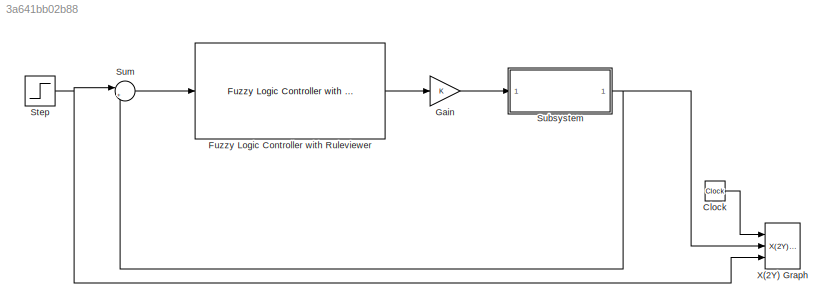
MODEL slx_3a641bb02b88
KIND model
BLOCK [Clock] Clock
  DisplayTime = on
BLOCK [Reference] Fuzzy Logic Controller with Ruleviewer  REF=fuzblock/Fuzzy Logic   (lib defined in mdl_858b3b3e7478)
Controller 
with Ruleviewer
  Ports = [1, 1]
  SourceBlock = fuzblock/Fuzzy Logic \nController \nwith Ruleviewer
  SourceType = FIS
  Ts = 2
  fismatrix = tank
BLOCK [Gain] Gain
  OutDataTypeStr = Inherit: Inherit via internal rule
  ParamDataTypeStr = Inherit: Inherit via internal rule
  SaturateOnIntegerOverflow = off
BLOCK [Step] Step
  After = 15
  SampleTime = 0
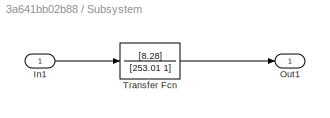
BLOCK [SubSystem] Subsystem
  FunctionWithSeparateData = off
  MaskHideContents = off
  MinAlgLoopOccurrences = off
  Opaque = off
  Ports = [1, 1]
  PropExecContextOutsideSubsystem = off
  RTWSystemCode = Auto
  RequestExecContextInheritance = off
BLOCK [Inport] Subsystem/In1
  IconDisplay = Port number
BLOCK [Outport] Subsystem/Out1
  IconDisplay = Port number
BLOCK [TransferFcn] Subsystem/Transfer Fcn
  Denominator = [253.01 1]
  Numerator = [8.28]
BLOCK [Sum] Sum
  IconShape = round
  InputSameDT = off
  Inputs = |+-
  OutDataTypeStr = Inherit: Inherit via internal rule
  Ports = [2, 1]
  SaturateOnIntegerOverflow = off
BLOCK [Reference] X(2Y) Graph  REF=neural/Control Systems/X(2Y)
 Graph
  Ports = [3]
  SourceBlock = neural/Control Systems/X(2Y)\n Graph
  SourceType = X(2Y) scope.
  st = -1
  xmax = 5
  xmin = 0
  ymax = 22
  ymin = 21
LINE Clock:1 -> X(2Y) Graph:1
LINE Fuzzy Logic Controller with Ruleviewer:1 -> Gain:1
LINE Gain:1 -> Subsystem:1
NET Step:1 -> Sum:1, X(2Y) Graph:3
LINE Subsystem/In1:1 -> Subsystem/Transfer Fcn:1
LINE Subsystem/Transfer Fcn:1 -> Subsystem/Out1:1
NET Subsystem:1 -> Sum:2, X(2Y) Graph:2
LINE Sum:1 -> Fuzzy Logic Controller with Ruleviewer:1
note: NET lines group one-source signal fan-out (src -> all destinations, sorted); 1:1 wires keep LINE
